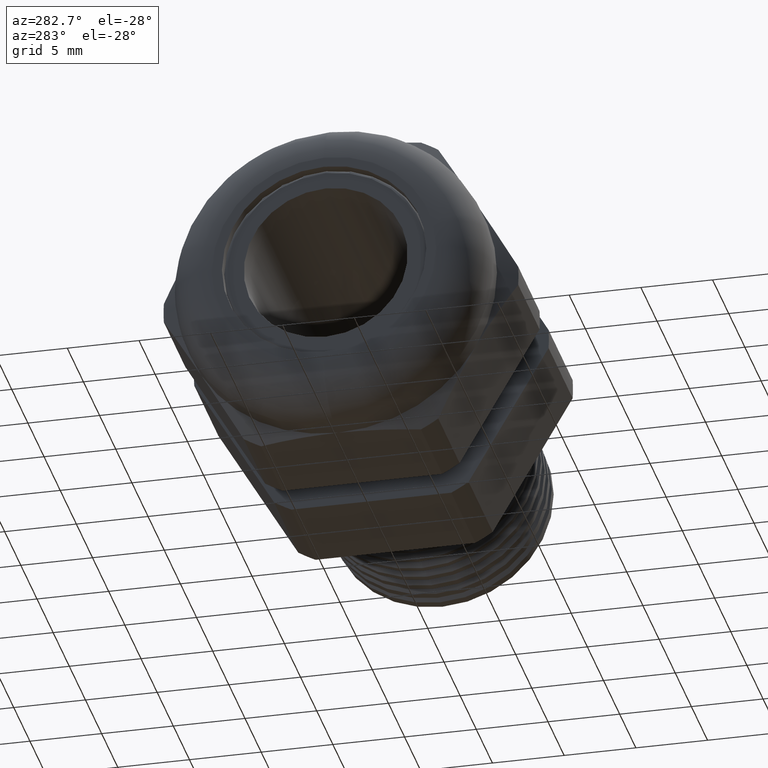
[diagram: clean part render]
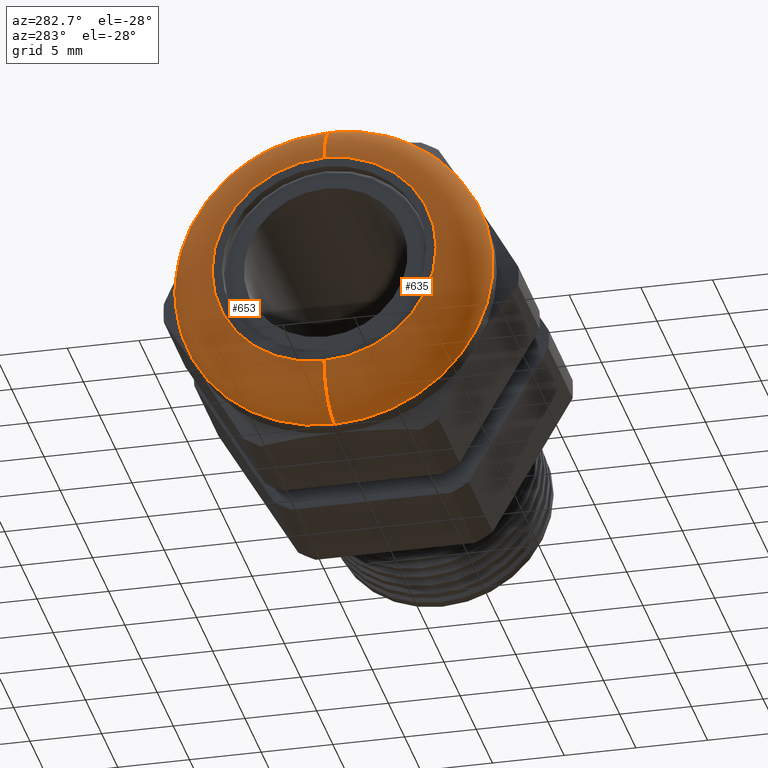
[diagram: same view with one multi-face feature highlighted, each face labeled with its STEP entity id]
A machine part, auxiliary view. The highlighted faces form ONE feature: a constant-radius fillet chain: 2 tangent blend faces with common blend radius 3.2309 mm. The faces share edges in the B-rep.
Their STEP definitions:
[1] entity #635 (Torus):
#92 = EDGE_CURVE ( 'NONE', #647, #646, #1043, .T. ) ;
#137 = EDGE_CURVE ( 'NONE', #644, #640, #1120, .T. ) ;
#635 = ADVANCED_FACE ( 'NONE', ( #2169 ), #2227, .T. ) ;
#636 = EDGE_LOOP ( 'NONE', ( #692, #693, #694, #695 ) ) ;
#637 = EDGE_CURVE ( 'NONE', #647, #640, #2223, .T. ) ;
#640 = VERTEX_POINT ( 'NONE', #2213 ) ;
#641 = EDGE_CURVE ( 'NONE', #646, #644, #2212, .T. ) ;
#644 = VERTEX_POINT ( 'NONE', #2207 ) ;
#646 = VERTEX_POINT ( 'NONE', #2206 ) ;
#647 = VERTEX_POINT ( 'NONE', #2205 ) ;
#692 = ORIENTED_EDGE ( 'NONE', *, *, #641, .F. ) ;
#693 = ORIENTED_EDGE ( 'NONE', *, *, #92, .F. ) ;
#694 = ORIENTED_EDGE ( 'NONE', *, *, #637, .T. ) ;
#695 = ORIENTED_EDGE ( 'NONE', *, *, #137, .F. ) ;
#1039 = DIRECTION ( 'NONE',  ( 0.0000000000000000000, 0.0000000000000000000, -1.000000000000000000 ) ) ;
#1040 = DIRECTION ( 'NONE',  ( -1.000000000000000000, 0.0000000000000000000, 0.0000000000000000000 ) ) ;
#1041 = CARTESIAN_POINT ( 'NONE',  ( -0.8700000000000000000, 0.0000000000000000000, 0.0000000000000000000 ) ) ;
#1042 = AXIS2_PLACEMENT_3D ( 'NONE', #1041, #1040, #1039 ) ;
#1043 = CIRCLE ( 'NONE', #1042, 0.3077999999999998500 ) ;
#1117 = DIRECTION ( 'NONE',  ( 0.0000000000000000000, 0.0000000000000000000, -1.000000000000000000 ) ) ;
#1118 = DIRECTION ( 'NONE',  ( 1.000000000000000000, 0.0000000000000000000, 0.0000000000000000000 ) ) ;
#1119 = AXIS2_PLACEMENT_3D ( 'NONE', #1125, #1118, #1117 ) ;
#1120 = CIRCLE ( 'NONE', #1119, 0.4349999999999998900 ) ;
#1125 = CARTESIAN_POINT ( 'NONE',  ( -0.7428000000000000200, 0.0000000000000000000, 0.0000000000000000000 ) ) ;
#2169 = FACE_OUTER_BOUND ( 'NONE', #636, .T. ) ;
#2205 = CARTESIAN_POINT ( 'NONE',  ( -0.8700000000000000000, 0.0000000000000000000, -0.3077999999999998500 ) ) ;
#2206 = CARTESIAN_POINT ( 'NONE',  ( -0.8700000000000000000, 4.548338212033268100E-017, 0.3077999999999998500 ) ) ;
#2207 = CARTESIAN_POINT ( 'NONE',  ( -0.7428000000000000200, 0.0000000000000000000, 0.4349999999999998900 ) ) ;
#2208 = DIRECTION ( 'NONE',  ( 0.0000000000000000000, 1.224646799147353200E-016, 1.000000000000000000 ) ) ;
#2209 = DIRECTION ( 'NONE',  ( 0.0000000000000000000, 1.000000000000000000, -1.224646799147353200E-016 ) ) ;
#2210 = CARTESIAN_POINT ( 'NONE',  ( -0.7428000000000000200, 3.769462847775551100E-017, 0.3077999999999998500 ) ) ;
#2211 = AXIS2_PLACEMENT_3D ( 'NONE', #2210, #2209, #2208 ) ;
#2212 = CIRCLE ( 'NONE', #2211, 0.1272000000000000100 ) ;
#2213 = CARTESIAN_POINT ( 'NONE',  ( -0.7428000000000000200, 5.327213576290984500E-017, -0.4349999999999998900 ) ) ;
#2219 = DIRECTION ( 'NONE',  ( 0.0000000000000000000, 0.0000000000000000000, -1.000000000000000000 ) ) ;
#2220 = DIRECTION ( 'NONE',  ( 0.0000000000000000000, -1.000000000000000000, 0.0000000000000000000 ) ) ;
#2221 = CARTESIAN_POINT ( 'NONE',  ( -0.7428000000000000200, 0.0000000000000000000, -0.3077999999999998500 ) ) ;
#2222 = AXIS2_PLACEMENT_3D ( 'NONE', #2221, #2220, #2219 ) ;
#2223 = CIRCLE ( 'NONE', #2222, 0.1272000000000000100 ) ;
#2224 = DIRECTION ( 'NONE',  ( 0.0000000000000000000, 0.0000000000000000000, -1.000000000000000000 ) ) ;
#2225 = DIRECTION ( 'NONE',  ( 1.000000000000000000, 0.0000000000000000000, 0.0000000000000000000 ) ) ;
#2226 = AXIS2_PLACEMENT_3D ( 'NONE', #2228, #2225, #2224 ) ;
#2227 = TOROIDAL_SURFACE ( 'NONE', #2226, 0.3077999999999998500, 0.1272000000000000100 ) ;
#2228 = CARTESIAN_POINT ( 'NONE',  ( -0.7428000000000000200, 0.0000000000000000000, 0.0000000000000000000 ) ) ;
[2] entity #653 (Torus):
#637 = EDGE_CURVE ( 'NONE', #647, #640, #2223, .T. ) ;
#638 = EDGE_CURVE ( 'NONE', #640, #644, #2218, .T. ) ;
#640 = VERTEX_POINT ( 'NONE', #2213 ) ;
#641 = EDGE_CURVE ( 'NONE', #646, #644, #2212, .T. ) ;
#642 = ORIENTED_EDGE ( 'NONE', *, *, #638, .F. ) ;
#643 = ORIENTED_EDGE ( 'NONE', *, *, #637, .F. ) ;
#644 = VERTEX_POINT ( 'NONE', #2207 ) ;
#645 = ORIENTED_EDGE ( 'NONE', *, *, #641, .T. ) ;
#646 = VERTEX_POINT ( 'NONE', #2206 ) ;
#647 = VERTEX_POINT ( 'NONE', #2205 ) ;
#648 = ORIENTED_EDGE ( 'NONE', *, *, #649, .F. ) ;
#649 = EDGE_CURVE ( 'NONE', #646, #647, #2203, .T. ) ;
#653 = ADVANCED_FACE ( 'NONE', ( #2257 ), #2255, .T. ) ;
#654 = EDGE_LOOP ( 'NONE', ( #648, #645, #642, #643 ) ) ;
#2199 = DIRECTION ( 'NONE',  ( 0.0000000000000000000, 0.0000000000000000000, -1.000000000000000000 ) ) ;
#2200 = DIRECTION ( 'NONE',  ( -1.000000000000000000, 0.0000000000000000000, 0.0000000000000000000 ) ) ;
#2201 = CARTESIAN_POINT ( 'NONE',  ( -0.8700000000000000000, 0.0000000000000000000, 0.0000000000000000000 ) ) ;
#2202 = AXIS2_PLACEMENT_3D ( 'NONE', #2201, #2200, #2199 ) ;
#2203 = CIRCLE ( 'NONE', #2202, 0.3077999999999998500 ) ;
#2205 = CARTESIAN_POINT ( 'NONE',  ( -0.8700000000000000000, 0.0000000000000000000, -0.3077999999999998500 ) ) ;
#2206 = CARTESIAN_POINT ( 'NONE',  ( -0.8700000000000000000, 4.548338212033268100E-017, 0.3077999999999998500 ) ) ;
#2207 = CARTESIAN_POINT ( 'NONE',  ( -0.7428000000000000200, 0.0000000000000000000, 0.4349999999999998900 ) ) ;
#2208 = DIRECTION ( 'NONE',  ( 0.0000000000000000000, 1.224646799147353200E-016, 1.000000000000000000 ) ) ;
#2209 = DIRECTION ( 'NONE',  ( 0.0000000000000000000, 1.000000000000000000, -1.224646799147353200E-016 ) ) ;
#2210 = CARTESIAN_POINT ( 'NONE',  ( -0.7428000000000000200, 3.769462847775551100E-017, 0.3077999999999998500 ) ) ;
#2211 = AXIS2_PLACEMENT_3D ( 'NONE', #2210, #2209, #2208 ) ;
#2212 = CIRCLE ( 'NONE', #2211, 0.1272000000000000100 ) ;
#2213 = CARTESIAN_POINT ( 'NONE',  ( -0.7428000000000000200, 5.327213576290984500E-017, -0.4349999999999998900 ) ) ;
#2214 = DIRECTION ( 'NONE',  ( 0.0000000000000000000, 0.0000000000000000000, -1.000000000000000000 ) ) ;
#2215 = DIRECTION ( 'NONE',  ( 1.000000000000000000, 0.0000000000000000000, 0.0000000000000000000 ) ) ;
#2216 = CARTESIAN_POINT ( 'NONE',  ( -0.7428000000000000200, 0.0000000000000000000, 0.0000000000000000000 ) ) ;
#2217 = AXIS2_PLACEMENT_3D ( 'NONE', #2216, #2215, #2214 ) ;
#2218 = CIRCLE ( 'NONE', #2217, 0.4349999999999998900 ) ;
#2219 = DIRECTION ( 'NONE',  ( 0.0000000000000000000, 0.0000000000000000000, -1.000000000000000000 ) ) ;
#2220 = DIRECTION ( 'NONE',  ( 0.0000000000000000000, -1.000000000000000000, 0.0000000000000000000 ) ) ;
#2221 = CARTESIAN_POINT ( 'NONE',  ( -0.7428000000000000200, 0.0000000000000000000, -0.3077999999999998500 ) ) ;
#2222 = AXIS2_PLACEMENT_3D ( 'NONE', #2221, #2220, #2219 ) ;
#2223 = CIRCLE ( 'NONE', #2222, 0.1272000000000000100 ) ;
#2252 = DIRECTION ( 'NONE',  ( 0.0000000000000000000, 0.0000000000000000000, -1.000000000000000000 ) ) ;
#2253 = DIRECTION ( 'NONE',  ( 1.000000000000000000, 0.0000000000000000000, 0.0000000000000000000 ) ) ;
#2254 = AXIS2_PLACEMENT_3D ( 'NONE', #2256, #2253, #2252 ) ;
#2255 = TOROIDAL_SURFACE ( 'NONE', #2254, 0.3077999999999998500, 0.1272000000000000100 ) ;
#2256 = CARTESIAN_POINT ( 'NONE',  ( -0.7428000000000000200, 0.0000000000000000000, 0.0000000000000000000 ) ) ;
#2257 = FACE_OUTER_BOUND ( 'NONE', #654, .T. ) ;